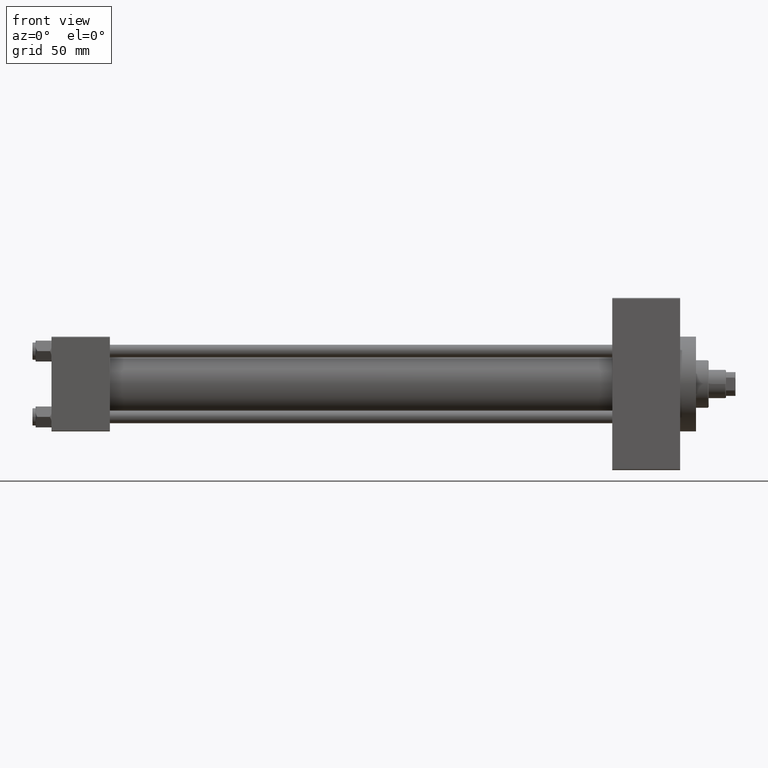
[diagram: clean part render]
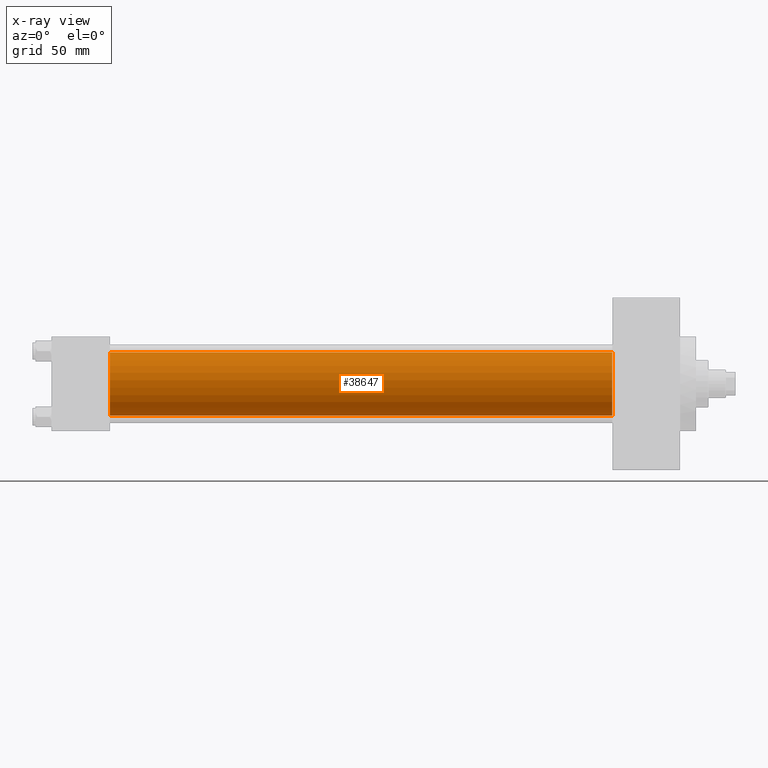
[diagram: x-ray — body ghosted, one internal face saturated and labeled with its STEP entity id]
A machine part, front view, then the same camera in x-ray: the body is ghosted and one INTERNAL B-rep face — a face not visible from any outside direction — is saturated and labeled: STEP entity #38647.
In plain terms, the highlighted cylindrical surface (edge-blend (fillet) strip) has radius 20 mm, axis along (-1, -0, -0).
Its self-contained STEP definition (entity closure, byte-faithful):
#72 = AXIS2_PLACEMENT_3D ( 'NONE', #39694, #35953, #2286 ) ;
#2286 = DIRECTION ( 'NONE',  ( 0.000000000000000000, 0.000000000000000000, -1.000000000000000000 ) ) ;
#3069 = EDGE_CURVE ( 'NONE', #4693, #39976, #8735, .T. ) ;
#4693 = VERTEX_POINT ( 'NONE', #20370 ) ;
#4793 = CARTESIAN_POINT ( 'NONE',  ( 355.0000000000000000, -2.602085213965210642E-15, 20.00000000000000000 ) ) ;
#6123 = FACE_OUTER_BOUND ( 'NONE', #9973, .T. ) ;
#6849 = EDGE_CURVE ( 'NONE', #16644, #11866, #24789, .T. ) ;
#8735 = CIRCLE ( 'NONE', #31051, 20.00000000000000000 ) ;
#9973 = EDGE_LOOP ( 'NONE', ( #44801, #35522, #26325, #17742 ) ) ;
#10360 = CARTESIAN_POINT ( 'NONE',  ( 355.0000000000000000, -2.602085213965210642E-15, 0.000000000000000000 ) ) ;
#11377 = EDGE_CURVE ( 'NONE', #16644, #4693, #47409, .T. ) ;
#11866 = VERTEX_POINT ( 'NONE', #40845 ) ;
#13282 = DIRECTION ( 'NONE',  ( -1.000000000000000000, -0.000000000000000000, -0.000000000000000000 ) ) ;
#16644 = VERTEX_POINT ( 'NONE', #31459 ) ;
#17642 = CARTESIAN_POINT ( 'NONE',  ( 355.0000000000000000, -1.527916156705046464E-16, -20.00000000000000000 ) ) ;
#17742 = ORIENTED_EDGE ( 'NONE', *, *, #11377, .F. ) ;
#20370 = CARTESIAN_POINT ( 'NONE',  ( 37.00000000000000000, -2.602085213965210642E-15, 20.00000000000000000 ) ) ;
#22014 = CARTESIAN_POINT ( 'NONE',  ( 37.00000000000000000, -2.602085213965210642E-15, 0.000000000000000000 ) ) ;
#22628 = EDGE_CURVE ( 'NONE', #11866, #39976, #41027, .T. ) ;
#24789 = CIRCLE ( 'NONE', #72, 20.00000000000000000 ) ;
#25072 = DIRECTION ( 'NONE',  ( 0.000000000000000000, 0.000000000000000000, 1.000000000000000000 ) ) ;
#25995 = DIRECTION ( 'NONE',  ( 0.000000000000000000, 0.000000000000000000, -1.000000000000000000 ) ) ;
#26325 = ORIENTED_EDGE ( 'NONE', *, *, #3069, .F. ) ;
#28820 = CYLINDRICAL_SURFACE ( 'NONE', #32211, 20.00000000000000000 ) ;
#29442 = VECTOR ( 'NONE', #13282, 1000.000000000000000 ) ;
#29497 = DIRECTION ( 'NONE',  ( 1.000000000000000000, 0.000000000000000000, 0.000000000000000000 ) ) ;
#31051 = AXIS2_PLACEMENT_3D ( 'NONE', #22014, #29497, #25995 ) ;
#31459 = CARTESIAN_POINT ( 'NONE',  ( 355.0000000000000000, -2.602085213965210642E-15, 20.00000000000000000 ) ) ;
#32211 = AXIS2_PLACEMENT_3D ( 'NONE', #10360, #43993, #25072 ) ;
#33068 = CARTESIAN_POINT ( 'NONE',  ( 37.00000000000000000, -1.527916156705046464E-16, -20.00000000000000000 ) ) ;
#35522 = ORIENTED_EDGE ( 'NONE', *, *, #22628, .T. ) ;
#35953 = DIRECTION ( 'NONE',  ( 1.000000000000000000, 0.000000000000000000, 0.000000000000000000 ) ) ;
#36311 = DIRECTION ( 'NONE',  ( -1.000000000000000000, -0.000000000000000000, -0.000000000000000000 ) ) ;
#38647 = ADVANCED_FACE ( 'NONE', ( #6123 ), #28820, .F. ) ;
#39694 = CARTESIAN_POINT ( 'NONE',  ( 355.0000000000000000, -2.602085213965210642E-15, 0.000000000000000000 ) ) ;
#39976 = VERTEX_POINT ( 'NONE', #33068 ) ;
#40845 = CARTESIAN_POINT ( 'NONE',  ( 355.0000000000000000, -1.527916156705046464E-16, -20.00000000000000000 ) ) ;
#41027 = LINE ( 'NONE', #17642, #47236 ) ;
#43993 = DIRECTION ( 'NONE',  ( -1.000000000000000000, -0.000000000000000000, -0.000000000000000000 ) ) ;
#44801 = ORIENTED_EDGE ( 'NONE', *, *, #6849, .T. ) ;
#47236 = VECTOR ( 'NONE', #36311, 1000.000000000000000 ) ;
#47409 = LINE ( 'NONE', #4793, #29442 ) ;